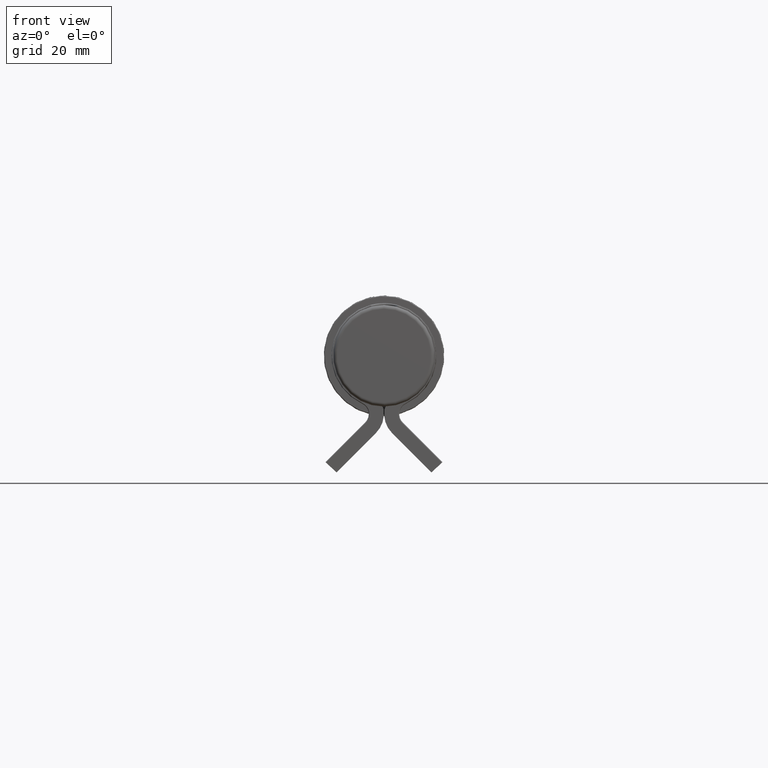
[diagram: clean part render]
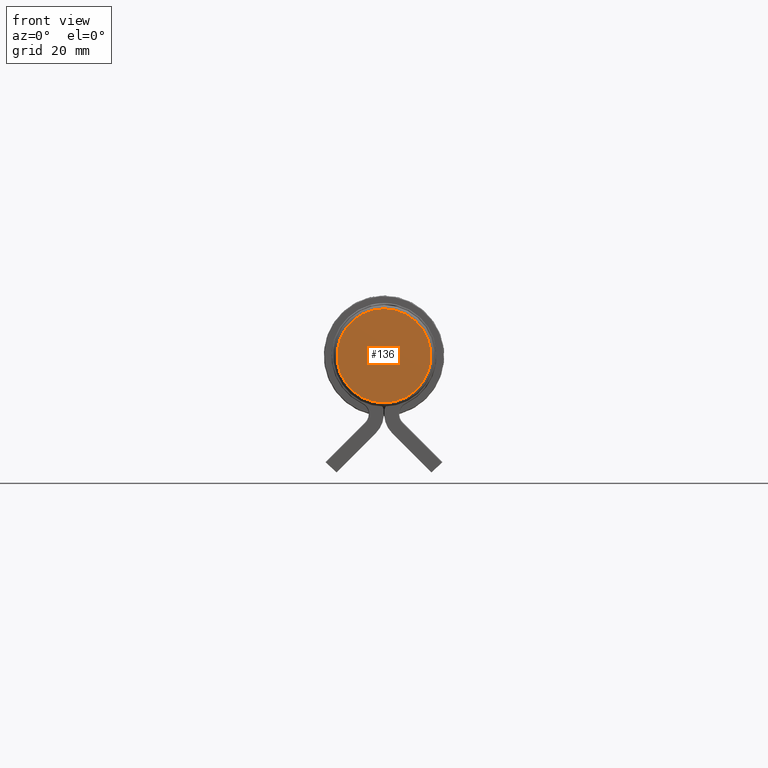
[diagram: same view with one face highlighted and labeled with its STEP entity id]
A machine part, front view. The second image highlights one B-rep face of the part: STEP entity #136.
In plain terms, the highlighted planar face has unit normal (0, -1, 0).
Its self-contained STEP definition (entity closure, byte-faithful):
#97 = ORIENTED_EDGE ( 'NONE', *, *, #365, .T. ) ;
#136 = ADVANCED_FACE ( 'NONE', ( #1159 ), #3797, .T. ) ;
#365 = EDGE_CURVE ( 'NONE', #3666, #3666, #3209, .T. ) ;
#897 = EDGE_LOOP ( 'NONE', ( #97 ) ) ;
#930 = DIRECTION ( 'NONE',  ( 0.000000000000000000, 0.000000000000000000, -1.000000000000000000 ) ) ;
#1159 = FACE_OUTER_BOUND ( 'NONE', #897, .T. ) ;
#1477 = DIRECTION ( 'NONE',  ( 0.000000000000000000, 0.000000000000000000, -1.000000000000000000 ) ) ;
#1658 = CARTESIAN_POINT ( 'NONE',  ( 13.49999999999999822, -3.467829943440785850E-15, 0.000000000000000000 ) ) ;
#1793 = CARTESIAN_POINT ( 'NONE',  ( 0.000000000000000000, -3.469446951953614189E-15, -12.49999999999999645 ) ) ;
#2017 = DIRECTION ( 'NONE',  ( 0.000000000000000000, -1.000000000000000000, -0.000000000000000000 ) ) ;
#2844 = DIRECTION ( 'NONE',  ( -0.000000000000000000, -1.000000000000000000, -0.000000000000000000 ) ) ;
#2859 = AXIS2_PLACEMENT_3D ( 'NONE', #4203, #2844, #1477 ) ;
#3209 = CIRCLE ( 'NONE', #2859, 12.49999999999999645 ) ;
#3666 = VERTEX_POINT ( 'NONE', #1793 ) ;
#3797 = PLANE ( 'NONE',  #4025 ) ;
#4025 = AXIS2_PLACEMENT_3D ( 'NONE', #1658, #2017, #930 ) ;
#4203 = CARTESIAN_POINT ( 'NONE',  ( 0.000000000000000000, -3.469446951953614189E-15, 0.000000000000000000 ) ) ;